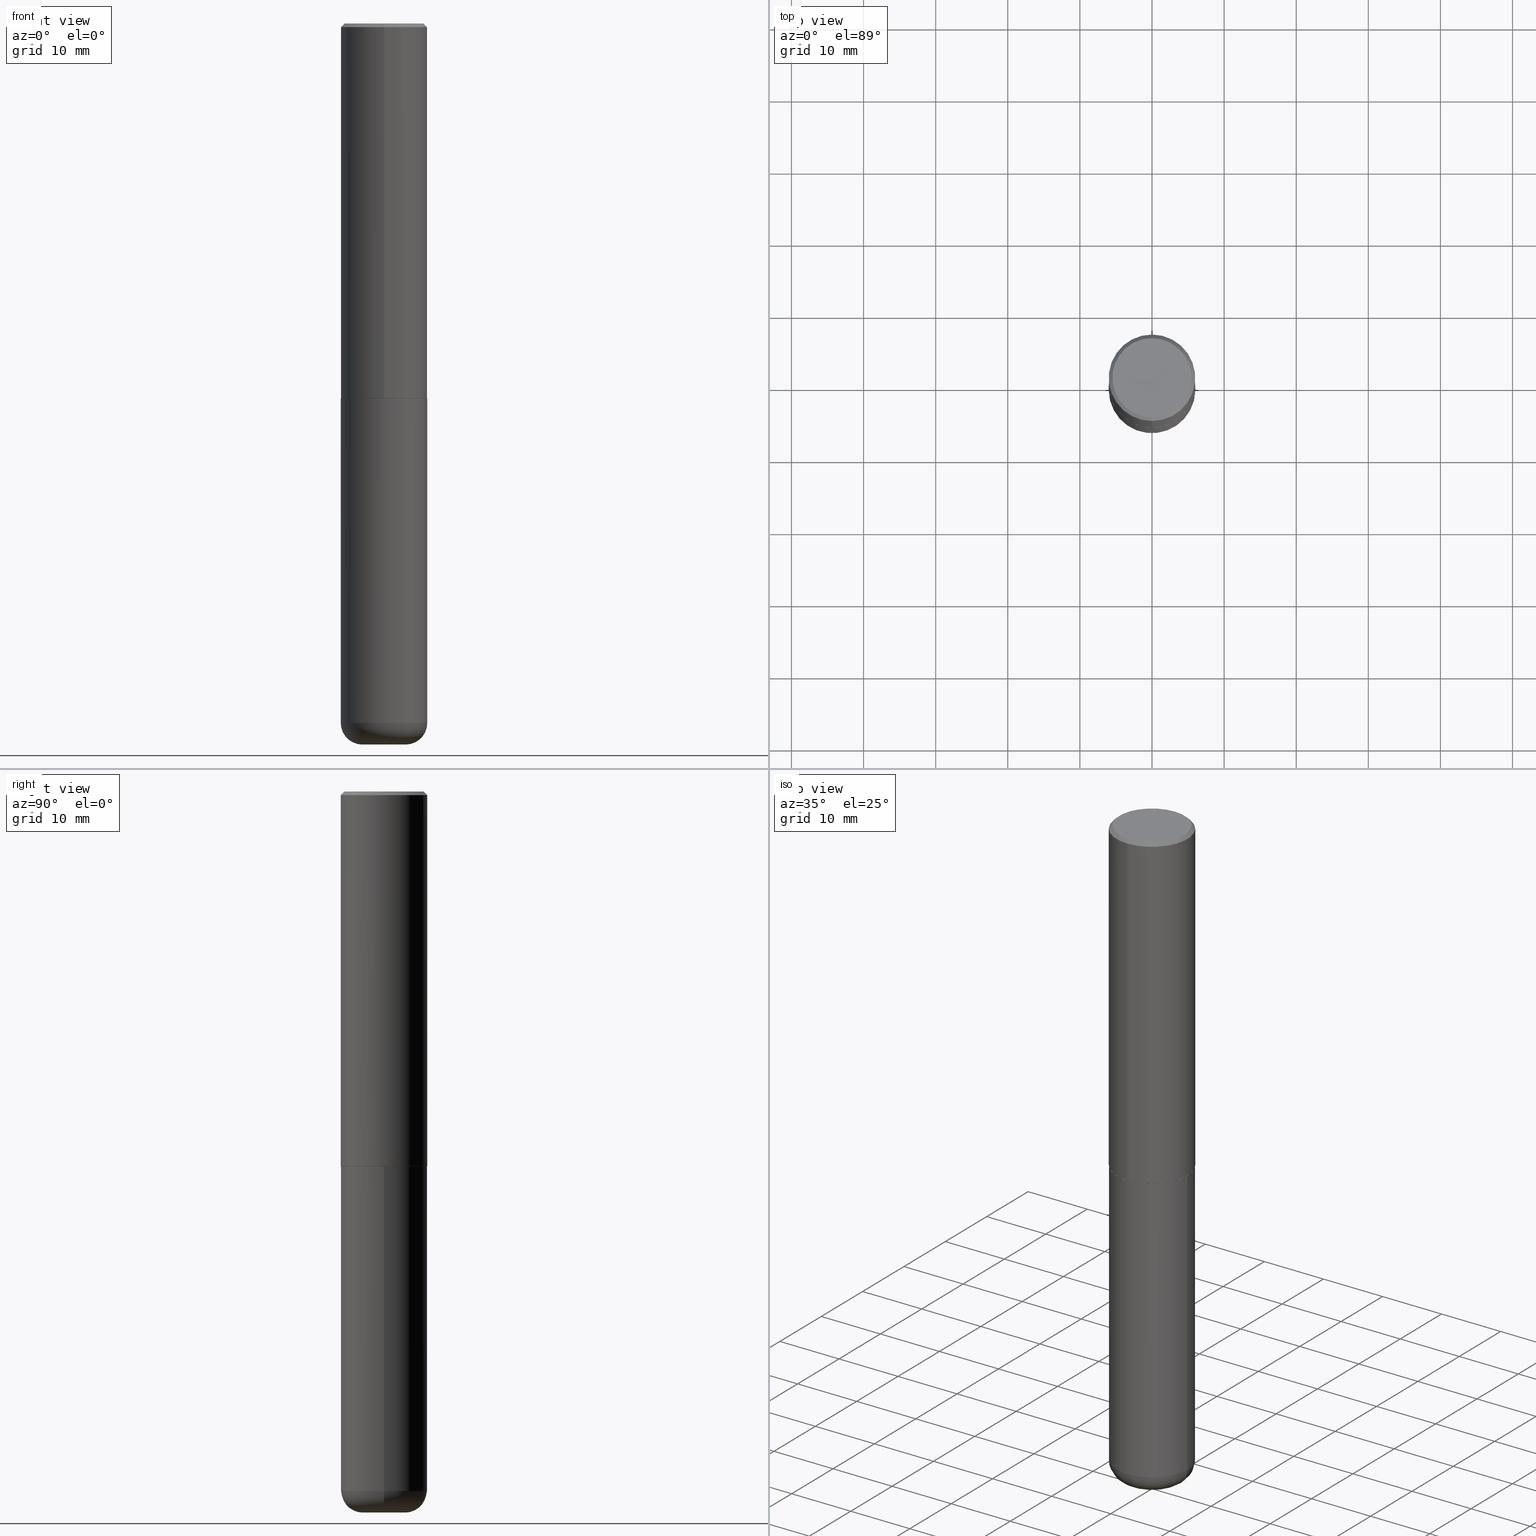
[diagram: canonical four-view strip — front | top / right | iso, engineering-drawing reading convention]
A machine part, canonical four-view strip (front | top / right | iso — engineering-drawing reading convention). The complete STEP part file that produces these views, byte-faithful:
ISO-10303-21;
HEADER;
FILE_DESCRIPTION (( 'STEP AP203' ),
    '1' );
FILE_NAME ('44867.STEP',
    '2024-03-04T11:51:31',
    ( '' ),
    ( '' ),
    'SwSTEP 2.0',
    'SolidWorks 2023',
    '' );
FILE_SCHEMA (( 'CONFIG_CONTROL_DESIGN' ));
ENDSEC;

DATA;
#1 = DIRECTION ( 'NONE',  ( -2.445136991832956056E-29, 3.491956515881168560E-15, 1.000000000000000000 ) ) ;
#2 = VERTEX_POINT ( 'NONE', #379 ) ;
#3 =( NAMED_UNIT ( * ) PLANE_ANGLE_UNIT ( ) SI_UNIT ( $, .RADIAN. ) );
#4 = VERTEX_POINT ( 'NONE', #373 ) ;
#5 = APPROVAL ( #313, 'UNSPECIFIED' ) ;
#6 = DIRECTION ( 'NONE',  ( -6.982962677686265922E-15, -1.000000000000000000, 3.491956515881168560E-15 ) ) ;
#7 = ORIENTED_EDGE ( 'NONE', *, *, #346, .F. ) ;
#8 = AXIS2_PLACEMENT_3D ( 'NONE', #386, #387, #289 ) ;
#9 = CC_DESIGN_APPROVAL ( #131, ( #25 ) ) ;
#10 = DIRECTION ( 'NONE',  ( -6.982962677686265922E-15, -1.000000000000000000, 3.487819265831411744E-15 ) ) ;
#11 = ORIENTED_EDGE ( 'NONE', *, *, #315, .T. ) ;
#12 = PERSON_AND_ORGANIZATION_ROLE ( 'design_owner' ) ;
#13 = EDGE_CURVE ( 'NONE', #158, #172, #150, .T. ) ;
#14 = ORIENTED_EDGE ( 'NONE', *, *, #405, .T. ) ;
#15 = CALENDAR_DATE ( 2024, 4, 3 ) ;
#16 = FACE_OUTER_BOUND ( 'NONE', #392, .T. ) ;
#17 = DATE_AND_TIME ( #374, #359 ) ;
#18 = TOROIDAL_SURFACE ( 'NONE', #406, 0.1180999999999999966, 0.1181000000000000383 ) ;
#19 = PLANE ( 'NONE',  #203 ) ;
#20 = CARTESIAN_POINT ( 'NONE',  ( 0.000000000000000000, 0.000000000000000000, 0.000000000000000000 ) ) ;
#21 = ADVANCED_FACE ( 'NONE', ( #339 ), #276, .T. ) ;
#22 = CARTESIAN_POINT ( 'NONE',  ( 9.627810689950883669E-29, -1.374596203102546341E-14, -3.937000000000000277 ) ) ;
#23 = CARTESIAN_POINT ( 'NONE',  ( -0.2362000000000000210, -1.165531614304273447E-14, -3.818900000000000183 ) ) ;
#24 = CIRCLE ( 'NONE', #367, 0.1181000000000000383 ) ;
#25 = PRODUCT_DEFINITION_FORMATION_WITH_SPECIFIED_SOURCE ( 'ANY', '', #228, .NOT_KNOWN. ) ;
#26 = ADVANCED_FACE ( 'NONE', ( #127 ), #376, .F. ) ;
#27 = DIRECTION ( 'NONE',  ( 1.000000000000000000, -6.982962677686266711E-15, 4.876176775795936353E-29 ) ) ;
#28 = FACE_OUTER_BOUND ( 'NONE', #364, .T. ) ;
#29 = LINE ( 'NONE', #382, #83 ) ;
#30 = EDGE_LOOP ( 'NONE', ( #147, #295, #86, #328 ) ) ;
#31 = AXIS2_PLACEMENT_3D ( 'NONE', #318, #33, #197 ) ;
#32 = SECURITY_CLASSIFICATION ( '', '', #85 ) ;
#33 = DIRECTION ( 'NONE',  ( -2.445136991832956056E-29, 3.491956515881168560E-15, 1.000000000000000000 ) ) ;
#34 = DIRECTION ( 'NONE',  ( -2.445468806185136597E-29, 3.491481338843145583E-15, 1.000000000000000000 ) ) ;
#35 = DIRECTION ( 'NONE',  ( -2.445136991832956056E-29, 3.491956515881168560E-15, 1.000000000000000000 ) ) ;
#36 = VERTEX_POINT ( 'NONE', #280 ) ;
#37 = CIRCLE ( 'NONE', #66, 0.2361999999999999933 ) ;
#38 = APPROVAL_STATUS ( 'not_yet_approved' ) ;
#39 = ADVANCED_FACE ( 'NONE', ( #182 ), #19, .F. ) ;
#40 = ORIENTED_EDGE ( 'NONE', *, *, #326, .F. ) ;
#41 = ORIENTED_EDGE ( 'NONE', *, *, #369, .T. ) ;
#42 = ORIENTED_EDGE ( 'NONE', *, *, #106, .F. ) ;
#43 = EDGE_CURVE ( 'NONE', #172, #158, #301, .T. ) ;
#44 = VECTOR ( 'NONE', #353, 39.37007874015748854 ) ;
#45 = CARTESIAN_POINT ( 'NONE',  ( -0.2361999999999999933, -8.562387399028531560E-15, -2.047200000000000131 ) ) ;
#46 = ORIENTED_EDGE ( 'NONE', *, *, #211, .T. ) ;
#47 = DATE_AND_TIME ( #402, #195 ) ;
#48 = FACE_OUTER_BOUND ( 'NONE', #284, .T. ) ;
#49 = DIRECTION ( 'NONE',  ( -6.982962677686265922E-15, -1.000000000000000000, 3.491956515881168560E-15 ) ) ;
#50 = DESIGN_CONTEXT ( 'detailed design', #350, 'design' ) ;
#51 = PERSON_AND_ORGANIZATION_ROLE ( 'creator' ) ;
#52 = CONICAL_SURFACE ( 'NONE', #293, 0.2351999999999999924, 0.7853981633973970977 ) ;
#53 = AXIS2_PLACEMENT_3D ( 'NONE', #291, #261, #416 ) ;
#54 = DIRECTION ( 'NONE',  ( 2.438088387897960049E-29, -3.491481338843145188E-15, -1.000000000000000000 ) ) ;
#55 = PRODUCT_RELATED_PRODUCT_CATEGORY ( 'detail', '', ( #228 ) ) ;
#56 = DIRECTION ( 'NONE',  ( -6.982962677686265922E-15, -1.000000000000000000, 3.491956515881168560E-15 ) ) ;
#57 = DATE_TIME_ROLE ( 'classification_date' ) ;
#58 = CARTESIAN_POINT ( 'NONE',  ( 1.509716530915770915E-15, 0.2162000000000000310, -7.741179383011501957E-16 ) ) ;
#59 = ADVANCED_FACE ( 'NONE', ( #279 ), #400, .T. ) ;
#60 = CARTESIAN_POINT ( 'NONE',  ( 9.339000823940418668E-29, -1.333361808490808928E-14, -3.818900000000000183 ) ) ;
#61 = CIRCLE ( 'NONE', #103, 0.2351999999999999924 ) ;
#62 = LINE ( 'NONE', #239, #175 ) ;
#63 = DIRECTION ( 'NONE',  ( 1.000000000000000000, -6.982962677686265133E-15, 0.000000000000000000 ) ) ;
#64 = CIRCLE ( 'NONE', #53, 0.2361999999999999933 ) ;
#65 = CARTESIAN_POINT ( 'NONE',  ( 5.006363740022212241E-29, -7.147760596879688202E-15, -2.047200000000000131 ) ) ;
#66 = AXIS2_PLACEMENT_3D ( 'NONE', #411, #381, #337 ) ;
#67 = CC_DESIGN_PERSON_AND_ORGANIZATION_ASSIGNMENT ( #333, #12, ( #228 ) ) ;
#68 = DIRECTION ( 'NONE',  ( -1.000000000000000000, 6.982962677686265922E-15, -4.876176775795935793E-29 ) ) ;
#69 = CARTESIAN_POINT ( 'NONE',  ( 9.368268317429773980E-46, -1.337903998951356127E-31, -3.831387913528317122E-17 ) ) ;
#70 = EDGE_CURVE ( 'NONE', #36, #303, #37, .T. ) ;
#71 = MECHANICAL_CONTEXT ( 'NONE', #340, 'mechanical' ) ;
#72 = VERTEX_POINT ( 'NONE', #23 ) ;
#73 = CIRCLE ( 'NONE', #308, 0.2362000000000000210 ) ;
#74 = AXIS2_PLACEMENT_3D ( 'NONE', #232, #35, #298 ) ;
#75 = CYLINDRICAL_SURFACE ( 'NONE', #258, 0.2362000000000001321 ) ;
#76 = ORIENTED_EDGE ( 'NONE', *, *, #369, .F. ) ;
#77 = CARTESIAN_POINT ( 'NONE',  ( 0.000000000000000000, 0.000000000000000000, 0.000000000000000000 ) ) ;
#78 = ORIENTED_EDGE ( 'NONE', *, *, #143, .F. ) ;
#79 = CARTESIAN_POINT ( 'NONE',  ( 0.000000000000000000, 0.000000000000000000, 0.000000000000000000 ) ) ;
#80 = EDGE_LOOP ( 'NONE', ( #314, #242, #42, #170 ) ) ;
#81 = ADVANCED_FACE ( 'NONE', ( #48 ), #277, .T. ) ;
#82 = CIRCLE ( 'NONE', #31, 0.2162000000000000310 ) ;
#83 = VECTOR ( 'NONE', #319, 39.37007874015748143 ) ;
#84 = ORIENTED_EDGE ( 'NONE', *, *, #346, .T. ) ;
#85 = SECURITY_CLASSIFICATION_LEVEL ( 'unclassified' ) ;
#86 = ORIENTED_EDGE ( 'NONE', *, *, #315, .F. ) ;
#87 = COORDINATED_UNIVERSAL_TIME_OFFSET ( 5, 0, .BEHIND. ) ;
#88 = EDGE_CURVE ( 'NONE', #112, #264, #129, .T. ) ;
#89 = DIRECTION ( 'NONE',  ( -2.445468806185136597E-29, 3.491481338843145583E-15, 1.000000000000000000 ) ) ;
#90 = SHAPE_DEFINITION_REPRESENTATION ( #362, #274 ) ;
#91 = AXIS2_PLACEMENT_3D ( 'NONE', #317, #287, #68 ) ;
#92 = VECTOR ( 'NONE', #233, 39.37007874015748143 ) ;
#93 = DIRECTION ( 'NONE',  ( 2.445136991832956056E-29, -3.491956515881168560E-15, -1.000000000000000000 ) ) ;
#94 = PERSON ( 'UNSPECIFIED', 'UNSPECIFIED', 'UNSPECIFIED', ('UNSPECIFIED'), ('UNSPECIFIED'), ('UNSPECIFIED') ) ;
#95 = ORIENTED_EDGE ( 'NONE', *, *, #283, .F. ) ;
#96 = ADVANCED_FACE ( 'NONE', ( #16 ), #52, .T. ) ;
#97 = DIRECTION ( 'NONE',  ( -1.000000000000000000, 6.982962677686265922E-15, -4.876176775795935793E-29 ) ) ;
#98 = LINE ( 'NONE', #325, #322 ) ;
#99 = CARTESIAN_POINT ( 'NONE',  ( -1.642392821791759629E-15, -0.2352000000000071256, -2.047199999999999687 ) ) ;
#100 = DIRECTION ( 'NONE',  ( 1.000000000000000000, -6.982962677686263555E-15, 4.883557194083111780E-29 ) ) ;
#101 = CC_DESIGN_APPROVAL ( #192, ( #332 ) ) ;
#102 = CARTESIAN_POINT ( 'NONE',  ( 0.2362000000000000210, -1.498299386937758423E-14, -3.818900000000000183 ) ) ;
#103 = AXIS2_PLACEMENT_3D ( 'NONE', #348, #193, #412 ) ;
#104 = AXIS2_PLACEMENT_3D ( 'NONE', #79, #201, #208 ) ;
#105 = PERSON_AND_ORGANIZATION ( #94, #282 ) ;
#106 = EDGE_CURVE ( 'NONE', #320, #72, #73, .T. ) ;
#107 =( NAMED_UNIT ( * ) SI_UNIT ( $, .STERADIAN. ) SOLID_ANGLE_UNIT ( ) );
#108 = ORIENTED_EDGE ( 'NONE', *, *, #321, .T. ) ;
#109 = LINE ( 'NONE', #167, #125 ) ;
#110 = ORIENTED_EDGE ( 'NONE', *, *, #211, .F. ) ;
#111 = AXIS2_PLACEMENT_3D ( 'NONE', #65, #34, #63 ) ;
#112 = VERTEX_POINT ( 'NONE', #408 ) ;
#113 = ORIENTED_EDGE ( 'NONE', *, *, #417, .F. ) ;
#114 = CALENDAR_DATE ( 2024, 4, 3 ) ;
#115 = ORIENTED_EDGE ( 'NONE', *, *, #70, .F. ) ;
#116 = AXIS2_PLACEMENT_3D ( 'NONE', #22, #307, #154 ) ;
#117 = CALENDAR_DATE ( 2024, 4, 3 ) ;
#118 = DIRECTION ( 'NONE',  ( -6.982962677686265133E-15, -1.000000000000000000, 3.484499991918703113E-15 ) ) ;
#119 = CC_DESIGN_PERSON_AND_ORGANIZATION_ASSIGNMENT ( #215, #51, ( #332 ) ) ;
#120 = ORIENTED_EDGE ( 'NONE', *, *, #224, .T. ) ;
#121 = DIRECTION ( 'NONE',  ( -4.937700262164294818E-15, -0.7071067811865088260, 0.7071067811865862085 ) ) ;
#122 = CIRCLE ( 'NONE', #74, 0.2351999999999999924 ) ;
#123 = APPROVAL_DATE_TIME ( #47, #192 ) ;
#124 = AXIS2_PLACEMENT_3D ( 'NONE', #126, #253, #56 ) ;
#125 = VECTOR ( 'NONE', #356, 39.37007874015748143 ) ;
#126 = CARTESIAN_POINT ( 'NONE',  ( 5.005684449680428701E-29, -7.148733379311929375E-15, -2.047200000000000575 ) ) ;
#127 = FACE_OUTER_BOUND ( 'NONE', #365, .T. ) ;
#128 = DIRECTION ( 'NONE',  ( 1.000000000000000000, -6.982962677686270655E-15, 0.000000000000000000 ) ) ;
#129 = CIRCLE ( 'NONE', #257, 0.2362000000000002431 ) ;
#130 = LINE ( 'NONE', #160, #155 ) ;
#131 = APPROVAL ( #370, 'UNSPECIFIED' ) ;
#132 = CARTESIAN_POINT ( 'NONE',  ( 1.678301941865383018E-15, 0.2361999999999931099, -2.046200000000001129 ) ) ;
#133 = CARTESIAN_POINT ( 'NONE',  ( 0.1181000000000000105, -1.457064992326021168E-14, -3.937000000000000277 ) ) ;
#134 = FACE_OUTER_BOUND ( 'NONE', #209, .T. ) ;
#135 = DIRECTION ( 'NONE',  ( -6.982962677686265133E-15, -1.000000000000000000, 3.484499991918703113E-15 ) ) ;
#136 = ORIENTED_EDGE ( 'NONE', *, *, #413, .T. ) ;
#137 = CARTESIAN_POINT ( 'NONE',  ( 0.2361999999999999933, -8.797136381349184727E-15, -2.047200000000000131 ) ) ;
#138 = ORIENTED_EDGE ( 'NONE', *, *, #405, .F. ) ;
#139 =( LENGTH_UNIT ( ) NAMED_UNIT ( * ) SI_UNIT ( $, .METRE. ) );
#140 = CIRCLE ( 'NONE', #236, 0.2361999999999999933 ) ;
#141 = EDGE_LOOP ( 'NONE', ( #240, #212, #138, #40 ) ) ;
#142 = LOCAL_TIME ( 6, 51, 31.00000000000000000, #151 ) ;
#143 = EDGE_CURVE ( 'NONE', #234, #112, #404, .T. ) ;
#144 =( CONVERSION_BASED_UNIT ( 'INCH', #169 ) LENGTH_UNIT ( ) NAMED_UNIT ( #285 ) );
#145 = ORIENTED_EDGE ( 'NONE', *, *, #265, .T. ) ;
#146 = DIRECTION ( 'NONE',  ( -2.445136991832956056E-29, 3.491956515881168560E-15, 1.000000000000000000 ) ) ;
#147 = ORIENTED_EDGE ( 'NONE', *, *, #106, .T. ) ;
#148 = CARTESIAN_POINT ( 'NONE',  ( 5.005684449680428701E-29, -7.148733379311929375E-15, -2.047200000000000575 ) ) ;
#149 = ADVANCED_FACE ( 'NONE', ( #250 ), #219, .F. ) ;
#150 = CIRCLE ( 'NONE', #116, 0.1181000000000000105 ) ;
#151 = COORDINATED_UNIVERSAL_TIME_OFFSET ( 5, 0, .BEHIND. ) ;
#152 = DIRECTION ( 'NONE',  ( 1.000000000000000000, -6.982962677686272233E-15, 0.000000000000000000 ) ) ;
#153 = DIRECTION ( 'NONE',  ( -2.445468806185136597E-29, 3.491481338843145583E-15, 1.000000000000000000 ) ) ;
#154 = DIRECTION ( 'NONE',  ( 1.000000000000000000, -6.982962677686272233E-15, 0.000000000000000000 ) ) ;
#155 = VECTOR ( 'NONE', #226, 39.37007874015748143 ) ;
#156 = EDGE_CURVE ( 'NONE', #393, #234, #61, .T. ) ;
#157 = CC_DESIGN_APPROVAL ( #5, ( #32 ) ) ;
#158 = VERTEX_POINT ( 'NONE', #133 ) ;
#159 = CARTESIAN_POINT ( 'NONE',  ( 0.1180999999999999966, -1.415830597714283912E-14, -3.818900000000000183 ) ) ;
#160 = CARTESIAN_POINT ( 'NONE',  ( 0.2361999999999999933, -1.649375784469496131E-15, 1.151752954443000088E-29 ) ) ;
#161 = CC_DESIGN_PERSON_AND_ORGANIZATION_ASSIGNMENT ( #178, #399, ( #32 ) ) ;
#162 = CARTESIAN_POINT ( 'NONE',  ( -0.1180999999999999966, -1.249446711397541187E-14, -3.818900000000000183 ) ) ;
#163 = EDGE_LOOP ( 'NONE', ( #299, #235, #202, #238 ) ) ;
#164 = CARTESIAN_POINT ( 'NONE',  ( -1.620449627073635079E-15, -0.2362000000000000766, -0.01999999999999922673 ) ) ;
#165 = ADVANCED_FACE ( 'NONE', ( #134 ), #174, .T. ) ;
#166 = PLANE ( 'NONE',  #91 ) ;
#167 = CARTESIAN_POINT ( 'NONE',  ( 1.649375784469496525E-15, 0.2361999999999999378, -0.02000000000000087472 ) ) ;
#168 = ORIENTED_EDGE ( 'NONE', *, *, #70, .T. ) ;
#169 = LENGTH_MEASURE_WITH_UNIT ( LENGTH_MEASURE( 0.02539999999999999897 ), #139 );
#170 = ORIENTED_EDGE ( 'NONE', *, *, #265, .F. ) ;
#171 = CARTESIAN_POINT ( 'NONE',  ( 5.003239312688594889E-29, -7.145241422796046345E-15, -2.046200000000000241 ) ) ;
#172 = VERTEX_POINT ( 'NONE', #418 ) ;
#173 = ORIENTED_EDGE ( 'NONE', *, *, #380, .F. ) ;
#174 = CONICAL_SURFACE ( 'NONE', #8, 0.2361999999999999933, 0.7853981633974469467 ) ;
#175 = VECTOR ( 'NONE', #327, 39.37007874015748143 ) ;
#176 = LINE ( 'NONE', #296, #92 ) ;
#177 = ORIENTED_EDGE ( 'NONE', *, *, #43, .F. ) ;
#178 = PERSON_AND_ORGANIZATION ( #94, #282 ) ;
#179 = EDGE_CURVE ( 'NONE', #172, #72, #183, .T. ) ;
#180 = CARTESIAN_POINT ( 'NONE',  ( 5.003239312688594889E-29, -7.145241422796046345E-15, -2.046200000000000241 ) ) ;
#181 = PERSON_AND_ORGANIZATION ( #94, #282 ) ;
#182 = FACE_OUTER_BOUND ( 'NONE', #267, .T. ) ;
#183 = CIRCLE ( 'NONE', #409, 0.1181000000000000383 ) ;
#184 = APPROVAL_PERSON_ORGANIZATION ( #220, #5, #338 ) ;
#185 = DATE_AND_TIME ( #15, #336 ) ;
#186 = DIRECTION ( 'NONE',  ( -6.982962677686265922E-15, -1.000000000000000000, 3.469747663417773452E-15 ) ) ;
#187 = DIRECTION ( 'NONE',  ( 1.000000000000000000, -6.982962677686266711E-15, 4.876176775795936353E-29 ) ) ;
#188 = CC_DESIGN_DATE_AND_TIME_ASSIGNMENT ( #213, #57, ( #32 ) ) ;
#189 = DIRECTION ( 'NONE',  ( 6.982962677686265922E-15, 1.000000000000000000, -3.487819265831411744E-15 ) ) ;
#190 = TOROIDAL_SURFACE ( 'NONE', #243, 0.1180999999999999966, 0.1181000000000000383 ) ;
#191 = DIRECTION ( 'NONE',  ( -2.445468806185136597E-29, 3.491481338843145583E-15, 1.000000000000000000 ) ) ;
#192 = APPROVAL ( #38, 'UNSPECIFIED' ) ;
#193 = DIRECTION ( 'NONE',  ( -2.445136991832956056E-29, 3.491956515881168560E-15, 1.000000000000000000 ) ) ;
#194 = DIRECTION ( 'NONE',  ( 1.000000000000000000, -6.982962677686263555E-15, 4.883557194083111780E-29 ) ) ;
#195 = LOCAL_TIME ( 6, 51, 31.00000000000000000, #341 ) ;
#196 = CLOSED_SHELL ( 'NONE', ( #96, #398, #165, #59, #21, #389, #149, #26 ) ) ;
#197 = DIRECTION ( 'NONE',  ( -6.982962677686265922E-15, -1.000000000000000000, 3.491956515881168955E-15 ) ) ;
#198 = APPROVAL_PERSON_ORGANIZATION ( #311, #131, #378 ) ;
#199 = CARTESIAN_POINT ( 'NONE',  ( 0.000000000000000000, 0.000000000000000000, 0.000000000000000000 ) ) ;
#200 = FACE_OUTER_BOUND ( 'NONE', #141, .T. ) ;
#201 = DIRECTION ( 'NONE',  ( 0.000000000000000000, 0.000000000000000000, 1.000000000000000000 ) ) ;
#202 = ORIENTED_EDGE ( 'NONE', *, *, #143, .T. ) ;
#203 = AXIS2_PLACEMENT_3D ( 'NONE', #316, #54, #97 ) ;
#204 = DIRECTION ( 'NONE',  ( -2.445136991832956056E-29, 3.491956515881168560E-15, 1.000000000000000000 ) ) ;
#205 = ORIENTED_EDGE ( 'NONE', *, *, #179, .F. ) ;
#206 = CARTESIAN_POINT ( 'NONE',  ( 4.890273983665924548E-31, -6.983913031762355363E-17, -0.02000000000000005246 ) ) ;
#207 = ORIENTED_EDGE ( 'NONE', *, *, #88, .F. ) ;
#208 = DIRECTION ( 'NONE',  ( 1.000000000000000000, 0.000000000000000000, 0.000000000000000000 ) ) ;
#209 = EDGE_LOOP ( 'NONE', ( #331, #84, #14, #247 ) ) ;
#210 = CIRCLE ( 'NONE', #111, 0.2361999999999999933 ) ;
#211 = EDGE_CURVE ( 'NONE', #397, #368, #210, .T. ) ;
#212 = ORIENTED_EDGE ( 'NONE', *, *, #417, .T. ) ;
#213 = DATE_AND_TIME ( #117, #142 ) ;
#214 = DIRECTION ( 'NONE',  ( 6.982962677686265922E-15, 1.000000000000000000, -3.491956515881168560E-15 ) ) ;
#215 = PERSON_AND_ORGANIZATION ( #94, #282 ) ;
#216 = CARTESIAN_POINT ( 'NONE',  ( 9.339000823940418668E-29, -1.333361808490808928E-14, -3.818900000000000183 ) ) ;
#217 = CIRCLE ( 'NONE', #377, 0.2362000000000000210 ) ;
#218 = CIRCLE ( 'NONE', #352, 0.2162000000000000310 ) ;
#219 = PLANE ( 'NONE',  #124 ) ;
#220 = PERSON_AND_ORGANIZATION ( #94, #282 ) ;
#221 = CARTESIAN_POINT ( 'NONE',  ( 0.000000000000000000, 0.000000000000000000, 0.000000000000000000 ) ) ;
#222 = CARTESIAN_POINT ( 'NONE',  ( 1.671196514507805281E-15, 0.2351999999999928592, -2.047200000000001463 ) ) ;
#223 = MANIFOLD_SOLID_BREP ( 'Body-Move/Copy2[1]', #407 ) ;
#224 = EDGE_CURVE ( 'NONE', #72, #320, #217, .T. ) ;
#225 = DIRECTION ( 'NONE',  ( -2.445136991832956056E-29, 3.491956515881168560E-15, 1.000000000000000000 ) ) ;
#226 = DIRECTION ( 'NONE',  ( -2.445468806185136877E-29, 3.491481338843145188E-15, 1.000000000000000000 ) ) ;
#227 = DIRECTION ( 'NONE',  ( -2.445468806185136597E-29, 3.491481338843145583E-15, 1.000000000000000000 ) ) ;
#228 = PRODUCT ( '44867', '44867', '', ( #71 ) ) ;
#229 = LINE ( 'NONE', #222, #44 ) ;
#230 =( GEOMETRIC_REPRESENTATION_CONTEXT ( 3 ) GLOBAL_UNCERTAINTY_ASSIGNED_CONTEXT ( ( #263 ) ) GLOBAL_UNIT_ASSIGNED_CONTEXT ( ( #144, #3, #107 ) ) REPRESENTATION_CONTEXT ( 'NONE', 'WORKASPACE' ) );
#231 = EDGE_CURVE ( 'NONE', #2, #4, #82, .T. ) ;
#232 = CARTESIAN_POINT ( 'NONE',  ( 5.005684449680428701E-29, -7.148733379311929375E-15, -2.047200000000000575 ) ) ;
#233 = DIRECTION ( 'NONE',  ( -2.445136991832956056E-29, 3.491956515881168560E-15, 1.000000000000000000 ) ) ;
#234 = VERTEX_POINT ( 'NONE', #99 ) ;
#235 = ORIENTED_EDGE ( 'NONE', *, *, #156, .T. ) ;
#236 = AXIS2_PLACEMENT_3D ( 'NONE', #206, #266, #10 ) ;
#237 = APPLICATION_PROTOCOL_DEFINITION ( 'international standard', 'config_control_design', 1994, #340 ) ;
#238 = ORIENTED_EDGE ( 'NONE', *, *, #413, .F. ) ;
#239 = CARTESIAN_POINT ( 'NONE',  ( -1.620449627073635079E-15, -0.2362000000000000766, -0.01999999999999922673 ) ) ;
#240 = ORIENTED_EDGE ( 'NONE', *, *, #88, .T. ) ;
#241 = ADVANCED_FACE ( 'NONE', ( #28 ), #166, .T. ) ;
#242 = ORIENTED_EDGE ( 'NONE', *, *, #179, .T. ) ;
#243 = AXIS2_PLACEMENT_3D ( 'NONE', #256, #259, #194 ) ;
#244 = PERSON_AND_ORGANIZATION_ROLE ( 'design_supplier' ) ;
#245 = DIRECTION ( 'NONE',  ( -2.445136991832956056E-29, 3.491956515881168560E-15, 1.000000000000000000 ) ) ;
#246 = COORDINATED_UNIVERSAL_TIME_OFFSET ( 5, 0, .BEHIND. ) ;
#247 = ORIENTED_EDGE ( 'NONE', *, *, #354, .F. ) ;
#248 = APPROVAL_DATE_TIME ( #185, #5 ) ;
#249 = ADVANCED_FACE ( 'NONE', ( #349 ), #414, .T. ) ;
#250 = FACE_OUTER_BOUND ( 'NONE', #273, .T. ) ;
#251 = LOCAL_TIME ( 6, 51, 31.00000000000000000, #366 ) ;
#252 = DATE_TIME_ROLE ( 'creation_date' ) ;
#253 = DIRECTION ( 'NONE',  ( -2.445136991832955495E-29, 3.491956515881168560E-15, 1.000000000000000000 ) ) ;
#254 = CARTESIAN_POINT ( 'NONE',  ( 4.890273983665924548E-31, -6.983913031762355363E-17, -0.02000000000000005246 ) ) ;
#255 = EDGE_CURVE ( 'NONE', #320, #368, #130, .T. ) ;
#256 = CARTESIAN_POINT ( 'NONE',  ( 9.339000823940418668E-29, -1.333361808490808928E-14, -3.818900000000000183 ) ) ;
#257 = AXIS2_PLACEMENT_3D ( 'NONE', #180, #305, #186 ) ;
#258 = AXIS2_PLACEMENT_3D ( 'NONE', #77, #1, #6 ) ;
#259 = DIRECTION ( 'NONE',  ( -2.445468806185136597E-29, 3.491481338843145583E-15, 1.000000000000000000 ) ) ;
#260 = CC_DESIGN_PERSON_AND_ORGANIZATION_ASSIGNMENT ( #275, #244, ( #25 ) ) ;
#261 = DIRECTION ( 'NONE',  ( -2.445468806185136597E-29, 3.491481338843145583E-15, 1.000000000000000000 ) ) ;
#262 = CARTESIAN_POINT ( 'NONE',  ( 9.339000823940418668E-29, -1.333361808490808928E-14, -3.818900000000000183 ) ) ;
#263 = UNCERTAINTY_MEASURE_WITH_UNIT (LENGTH_MEASURE( 1.000000000000000082E-05 ), #144, 'distance_accuracy_value', 'NONE');
#264 = VERTEX_POINT ( 'NONE', #132 ) ;
#265 = EDGE_CURVE ( 'NONE', #158, #320, #24, .T. ) ;
#266 = DIRECTION ( 'NONE',  ( -2.445136991832956056E-29, 3.491956515881168560E-15, 1.000000000000000000 ) ) ;
#267 = EDGE_LOOP ( 'NONE', ( #11, #46 ) ) ;
#268 = DIRECTION ( 'NONE',  ( -2.445136991832956056E-29, 3.491956515881168560E-15, 1.000000000000000000 ) ) ;
#269 = ORIENTED_EDGE ( 'NONE', *, *, #13, .F. ) ;
#270 = DIRECTION ( 'NONE',  ( -6.982962677686265922E-15, -1.000000000000000000, 3.491956515881168955E-15 ) ) ;
#271 = ORIENTED_EDGE ( 'NONE', *, *, #354, .T. ) ;
#272 = APPLICATION_PROTOCOL_DEFINITION ( 'international standard', 'config_control_design', 1994, #350 ) ;
#273 = EDGE_LOOP ( 'NONE', ( #76, #395 ) ) ;
#274 = ADVANCED_BREP_SHAPE_REPRESENTATION ( '44867', ( #223, #355, #104 ), #230 ) ;
#275 = PERSON_AND_ORGANIZATION ( #94, #282 ) ;
#276 = CYLINDRICAL_SURFACE ( 'NONE', #288, 0.2362000000000001321 ) ;
#277 = CYLINDRICAL_SURFACE ( 'NONE', #383, 0.2361999999999999933 ) ;
#278 = ADVANCED_FACE ( 'NONE', ( #391 ), #190, .T. ) ;
#279 = FACE_OUTER_BOUND ( 'NONE', #297, .T. ) ;
#280 = CARTESIAN_POINT ( 'NONE',  ( 1.649375784469496525E-15, 0.2361999999999999378, -0.02000000000000087472 ) ) ;
#281 = AXIS2_PLACEMENT_3D ( 'NONE', #254, #93, #189 ) ;
#282 = ORGANIZATION ( 'UNSPECIFIED', 'UNSPECIFIED', '' ) ;
#283 = EDGE_CURVE ( 'NONE', #72, #397, #29, .T. ) ;
#284 = EDGE_LOOP ( 'NONE', ( #95, #120, #371, #110 ) ) ;
#285 = DIMENSIONAL_EXPONENTS ( 1.000000000000000000, 0.000000000000000000, 0.000000000000000000, 0.000000000000000000, 0.000000000000000000, 0.000000000000000000, 0.000000000000000000 ) ;
#286 = DIRECTION ( 'NONE',  ( -1.000000000000000000, 7.105427357601001859E-15, 0.000000000000000000 ) ) ;
#287 = DIRECTION ( 'NONE',  ( 2.438088387897960049E-29, -3.491481338843145188E-15, -1.000000000000000000 ) ) ;
#288 = AXIS2_PLACEMENT_3D ( 'NONE', #221, #245, #49 ) ;
#289 = DIRECTION ( 'NONE',  ( 6.982962677686265922E-15, 1.000000000000000000, -3.487819265831411744E-15 ) ) ;
#290 = ORIENTED_EDGE ( 'NONE', *, *, #43, .T. ) ;
#291 = CARTESIAN_POINT ( 'NONE',  ( 5.006363740022212241E-29, -7.147760596879688202E-15, -2.047200000000000131 ) ) ;
#292 = FACE_OUTER_BOUND ( 'NONE', #394, .T. ) ;
#293 = AXIS2_PLACEMENT_3D ( 'NONE', #148, #401, #118 ) ;
#294 = ADVANCED_FACE ( 'NONE', ( #292 ), #18, .T. ) ;
#295 = ORIENTED_EDGE ( 'NONE', *, *, #283, .T. ) ;
#296 = CARTESIAN_POINT ( 'NONE',  ( 1.678301941865357380E-15, 0.2362000000000001321, -8.248001290511324534E-16 ) ) ;
#297 = EDGE_LOOP ( 'NONE', ( #7, #173, #271, #168 ) ) ;
#298 = DIRECTION ( 'NONE',  ( -6.982962677686265133E-15, -1.000000000000000000, 3.484499991918703113E-15 ) ) ;
#299 = ORIENTED_EDGE ( 'NONE', *, *, #321, .F. ) ;
#300 = CONICAL_SURFACE ( 'NONE', #410, 0.2351999999999999924, 0.7853981633973970977 ) ;
#301 = CIRCLE ( 'NONE', #334, 0.1181000000000000105 ) ;
#302 = ORIENTED_EDGE ( 'NONE', *, *, #326, .T. ) ;
#303 = VERTEX_POINT ( 'NONE', #164 ) ;
#304 = APPROVAL_DATE_TIME ( #17, #131 ) ;
#305 = DIRECTION ( 'NONE',  ( -2.445136991832956056E-29, 3.491956515881168560E-15, 1.000000000000000000 ) ) ;
#306 = PERSON_AND_ORGANIZATION_ROLE ( 'creator' ) ;
#307 = DIRECTION ( 'NONE',  ( -2.445468806185136597E-29, 3.491481338843145583E-15, 1.000000000000000000 ) ) ;
#308 = AXIS2_PLACEMENT_3D ( 'NONE', #216, #153, #344 ) ;
#309 = CC_DESIGN_PERSON_AND_ORGANIZATION_ASSIGNMENT ( #181, #306, ( #25 ) ) ;
#310 = AXIS2_PLACEMENT_3D ( 'NONE', #171, #146, #330 ) ;
#311 = PERSON_AND_ORGANIZATION ( #94, #282 ) ;
#312 = DIRECTION ( 'NONE',  ( 2.445136991832955495E-29, -3.491956515881168560E-15, -1.000000000000000000 ) ) ;
#313 = APPROVAL_STATUS ( 'not_yet_approved' ) ;
#314 = ORIENTED_EDGE ( 'NONE', *, *, #13, .T. ) ;
#315 = EDGE_CURVE ( 'NONE', #368, #397, #64, .T. ) ;
#316 = CARTESIAN_POINT ( 'NONE',  ( 5.006363740022212241E-29, -7.147760596879688202E-15, -2.047200000000000131 ) ) ;
#317 = CARTESIAN_POINT ( 'NONE',  ( 9.627810689950883669E-29, -1.374596203102546341E-14, -3.937000000000000277 ) ) ;
#318 = CARTESIAN_POINT ( 'NONE',  ( 9.368268317429773980E-46, -1.337903998951356127E-31, -3.831387913528317122E-17 ) ) ;
#319 = DIRECTION ( 'NONE',  ( -2.445468806185136877E-29, 3.491481338843145188E-15, 1.000000000000000000 ) ) ;
#320 = VERTEX_POINT ( 'NONE', #102 ) ;
#321 = EDGE_CURVE ( 'NONE', #393, #264, #229, .T. ) ;
#322 = VECTOR ( 'NONE', #225, 39.37007874015748143 ) ;
#323 = CC_DESIGN_SECURITY_CLASSIFICATION ( #32, ( #25 ) ) ;
#324 = DIRECTION ( 'NONE',  ( -6.982962677686266711E-15, -1.000000000000000000, 3.491481338843145583E-15 ) ) ;
#325 = CARTESIAN_POINT ( 'NONE',  ( -1.649375784469496920E-15, -0.2362000000000001321, 8.248001290511324534E-16 ) ) ;
#326 = EDGE_CURVE ( 'NONE', #112, #303, #98, .T. ) ;
#327 = DIRECTION ( 'NONE',  ( -4.851104656540957175E-15, -0.7071067811865490160, -0.7071067811865460184 ) ) ;
#328 = ORIENTED_EDGE ( 'NONE', *, *, #255, .F. ) ;
#329 = ORIENTED_EDGE ( 'NONE', *, *, #380, .T. ) ;
#330 = DIRECTION ( 'NONE',  ( -6.982962677686265922E-15, -1.000000000000000000, 3.469747663417773452E-15 ) ) ;
#331 = ORIENTED_EDGE ( 'NONE', *, *, #231, .F. ) ;
#332 = PRODUCT_DEFINITION ( 'UNKNOWN', '', #25, #50 ) ;
#333 = PERSON_AND_ORGANIZATION ( #94, #282 ) ;
#334 = AXIS2_PLACEMENT_3D ( 'NONE', #342, #89, #152 ) ;
#335 = ORIENTED_EDGE ( 'NONE', *, *, #224, .F. ) ;
#336 = LOCAL_TIME ( 6, 51, 31.00000000000000000, #87 ) ;
#337 = DIRECTION ( 'NONE',  ( -6.982962677686265922E-15, -1.000000000000000000, 3.487819265831411744E-15 ) ) ;
#338 = APPROVAL_ROLE ( '' ) ;
#339 = FACE_OUTER_BOUND ( 'NONE', #361, .T. ) ;
#340 = APPLICATION_CONTEXT ( 'configuration controlled 3d designs of mechanical parts and assemblies' ) ;
#341 = COORDINATED_UNIVERSAL_TIME_OFFSET ( 5, 0, .BEHIND. ) ;
#342 = CARTESIAN_POINT ( 'NONE',  ( 9.627810689950883669E-29, -1.374596203102546341E-14, -3.937000000000000277 ) ) ;
#343 = VECTOR ( 'NONE', #121, 39.37007874015748143 ) ;
#344 = DIRECTION ( 'NONE',  ( 1.000000000000000000, -6.982962677686264344E-15, 0.000000000000000000 ) ) ;
#345 = CARTESIAN_POINT ( 'NONE',  ( -1.642392821791759629E-15, -0.2352000000000071256, -2.047199999999999687 ) ) ;
#346 = EDGE_CURVE ( 'NONE', #2, #303, #62, .T. ) ;
#347 = DIRECTION ( 'NONE',  ( 1.000000000000000000, -6.982962677686264344E-15, 0.000000000000000000 ) ) ;
#348 = CARTESIAN_POINT ( 'NONE',  ( 5.005684449680428701E-29, -7.148733379311929375E-15, -2.047200000000000575 ) ) ;
#349 = FACE_OUTER_BOUND ( 'NONE', #30, .T. ) ;
#350 = APPLICATION_CONTEXT ( 'configuration controlled 3d designs of mechanical parts and assemblies' ) ;
#351 = AXIS2_PLACEMENT_3D ( 'NONE', #199, #191, #27 ) ;
#352 = AXIS2_PLACEMENT_3D ( 'NONE', #69, #268, #270 ) ;
#353 = DIRECTION ( 'NONE',  ( 5.024295867787803643E-15, 0.7071067811865135999, 0.7071067811865812125 ) ) ;
#354 = EDGE_CURVE ( 'NONE', #4, #36, #109, .T. ) ;
#355 = MANIFOLD_SOLID_BREP ( 'Body-Move/Copy2[2]', #196 ) ;
#356 = DIRECTION ( 'NONE',  ( 4.937700262164540942E-15, 0.7071067811865441310, -0.7071067811865509034 ) ) ;
#357 = CARTESIAN_POINT ( 'NONE',  ( 5.005684449680428701E-29, -7.148733379311929375E-15, -2.047200000000000575 ) ) ;
#358 = ORIENTED_EDGE ( 'NONE', *, *, #231, .T. ) ;
#359 = LOCAL_TIME ( 6, 51, 31.00000000000000000, #246 ) ;
#360 = CARTESIAN_POINT ( 'NONE',  ( 1.674749228186606772E-15, 0.2351999999999928592, -2.047200000000001463 ) ) ;
#361 = EDGE_LOOP ( 'NONE', ( #113, #136, #302, #115 ) ) ;
#362 = PRODUCT_DEFINITION_SHAPE ( 'NONE', 'NONE',  #332 ) ;
#363 = FACE_OUTER_BOUND ( 'NONE', #163, .T. ) ;
#364 = EDGE_LOOP ( 'NONE', ( #269, #177 ) ) ;
#365 = EDGE_LOOP ( 'NONE', ( #329, #358 ) ) ;
#366 = COORDINATED_UNIVERSAL_TIME_OFFSET ( 5, 0, .BEHIND. ) ;
#367 = AXIS2_PLACEMENT_3D ( 'NONE', #159, #324, #128 ) ;
#368 = VERTEX_POINT ( 'NONE', #137 ) ;
#369 = EDGE_CURVE ( 'NONE', #234, #393, #122, .T. ) ;
#370 = APPROVAL_STATUS ( 'not_yet_approved' ) ;
#371 = ORIENTED_EDGE ( 'NONE', *, *, #255, .T. ) ;
#372 = APPROVAL_ROLE ( '' ) ;
#373 = CARTESIAN_POINT ( 'NONE',  ( 1.579546157692633819E-15, 0.2162000000000000310, -7.932748778687920586E-16 ) ) ;
#374 = CALENDAR_DATE ( 2024, 4, 3 ) ;
#375 = APPROVAL_PERSON_ORGANIZATION ( #105, #192, #372 ) ;
#376 = PLANE ( 'NONE',  #384 ) ;
#377 = AXIS2_PLACEMENT_3D ( 'NONE', #60, #227, #347 ) ;
#378 = APPROVAL_ROLE ( '' ) ;
#379 = CARTESIAN_POINT ( 'NONE',  ( -1.551844647095920339E-15, -0.2162000000000000310, 7.166471195982256915E-16 ) ) ;
#380 = EDGE_CURVE ( 'NONE', #4, #2, #218, .T. ) ;
#381 = DIRECTION ( 'NONE',  ( -2.445136991832956056E-29, 3.491956515881168560E-15, 1.000000000000000000 ) ) ;
#382 = CARTESIAN_POINT ( 'NONE',  ( -0.2361999999999999933, 1.678301941865356591E-15, -1.161852468318208757E-29 ) ) ;
#383 = AXIS2_PLACEMENT_3D ( 'NONE', #20, #403, #187 ) ;
#384 = AXIS2_PLACEMENT_3D ( 'NONE', #58, #312, #214 ) ;
#385 = CC_DESIGN_DATE_AND_TIME_ASSIGNMENT ( #396, #252, ( #332 ) ) ;
#386 = CARTESIAN_POINT ( 'NONE',  ( 4.890273983665924548E-31, -6.983913031762355363E-17, -0.02000000000000005246 ) ) ;
#387 = DIRECTION ( 'NONE',  ( 2.445136991832956056E-29, -3.491956515881168560E-15, -1.000000000000000000 ) ) ;
#388 = DIRECTION ( 'NONE',  ( -2.445468806185136597E-29, 3.491481338843145583E-15, 1.000000000000000000 ) ) ;
#389 = ADVANCED_FACE ( 'NONE', ( #363 ), #300, .T. ) ;
#390 = CIRCLE ( 'NONE', #310, 0.2362000000000002431 ) ;
#391 = FACE_OUTER_BOUND ( 'NONE', #80, .T. ) ;
#392 = EDGE_LOOP ( 'NONE', ( #41, #108, #207, #78 ) ) ;
#393 = VERTEX_POINT ( 'NONE', #360 ) ;
#394 = EDGE_LOOP ( 'NONE', ( #205, #290, #145, #335 ) ) ;
#395 = ORIENTED_EDGE ( 'NONE', *, *, #156, .F. ) ;
#396 = DATE_AND_TIME ( #114, #251 ) ;
#397 = VERTEX_POINT ( 'NONE', #45 ) ;
#398 = ADVANCED_FACE ( 'NONE', ( #200 ), #75, .T. ) ;
#399 = PERSON_AND_ORGANIZATION_ROLE ( 'classification_officer' ) ;
#400 = CONICAL_SURFACE ( 'NONE', #281, 0.2361999999999999933, 0.7853981633974469467 ) ;
#401 = DIRECTION ( 'NONE',  ( -2.445136991832956056E-29, 3.491956515881168560E-15, 1.000000000000000000 ) ) ;
#402 = CALENDAR_DATE ( 2024, 4, 3 ) ;
#403 = DIRECTION ( 'NONE',  ( -2.445468806185136597E-29, 3.491481338843145583E-15, 1.000000000000000000 ) ) ;
#404 = LINE ( 'NONE', #345, #343 ) ;
#405 = EDGE_CURVE ( 'NONE', #303, #36, #140, .T. ) ;
#406 = AXIS2_PLACEMENT_3D ( 'NONE', #262, #388, #100 ) ;
#407 = CLOSED_SHELL ( 'NONE', ( #249, #278, #39, #81, #294, #241 ) ) ;
#408 = CARTESIAN_POINT ( 'NONE',  ( -1.649375784469447616E-15, -0.2362000000000073763, -2.046199999999999353 ) ) ;
#409 = AXIS2_PLACEMENT_3D ( 'NONE', #162, #415, #286 ) ;
#410 = AXIS2_PLACEMENT_3D ( 'NONE', #357, #204, #135 ) ;
#411 = CARTESIAN_POINT ( 'NONE',  ( 4.890273983665924548E-31, -6.983913031762355363E-17, -0.02000000000000005246 ) ) ;
#412 = DIRECTION ( 'NONE',  ( -6.982962677686265133E-15, -1.000000000000000000, 3.484499991918703113E-15 ) ) ;
#413 = EDGE_CURVE ( 'NONE', #264, #112, #390, .T. ) ;
#414 = CYLINDRICAL_SURFACE ( 'NONE', #351, 0.2361999999999999933 ) ;
#415 = DIRECTION ( 'NONE',  ( 7.105427357601001859E-15, 1.000000000000000000, -3.491481338843145583E-15 ) ) ;
#416 = DIRECTION ( 'NONE',  ( 1.000000000000000000, -6.982962677686265133E-15, 0.000000000000000000 ) ) ;
#417 = EDGE_CURVE ( 'NONE', #264, #36, #176, .T. ) ;
#418 = CARTESIAN_POINT ( 'NONE',  ( -0.1181000000000000383, -1.228106360156775866E-14, -3.937000000000000277 ) ) ;
ENDSEC;
END-ISO-10303-21;
